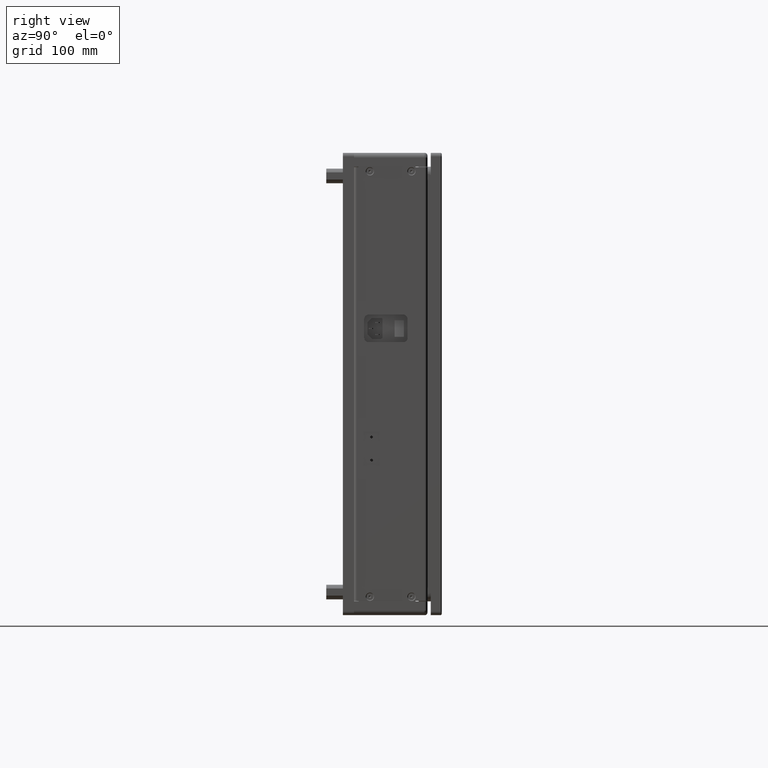
[diagram: clean part render]
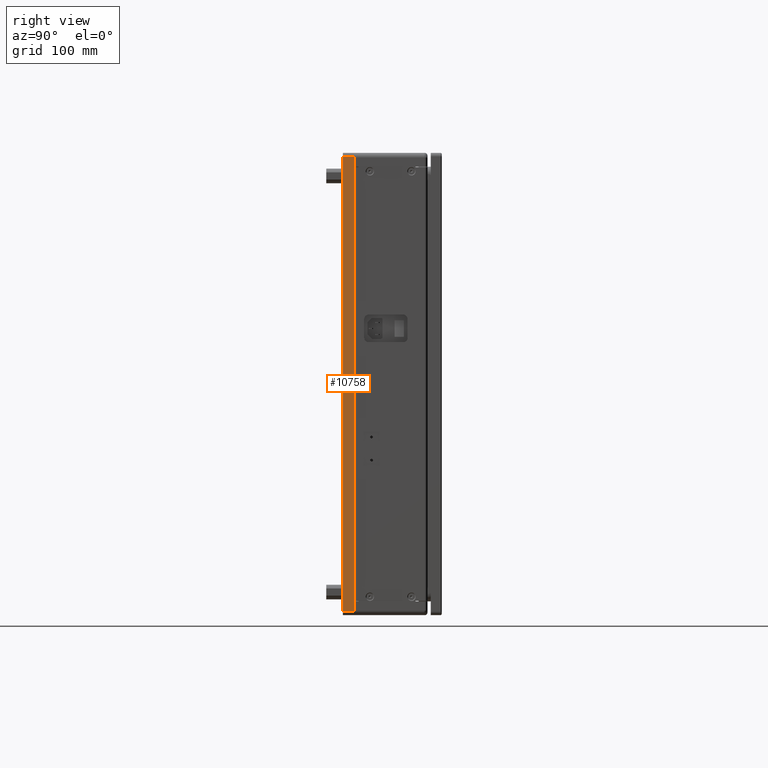
[diagram: same view with one face highlighted and labeled with its STEP entity id]
A machine part, right view. The second image highlights one B-rep face of the part: STEP entity #10758.
In plain terms, the highlighted planar face has unit normal (1, -0, 0).
Its self-contained STEP definition (entity closure, byte-faithful):
#1246 = CARTESIAN_POINT ( 'NONE',  ( 304.4512755979889107, 18.13718110050632859, 795.0000000000000000 ) ) ;
#1593 = DIRECTION ( 'NONE',  ( -0.000000000000000000, -1.000000000000000000, -0.000000000000000000 ) ) ;
#1907 = CARTESIAN_POINT ( 'NONE',  ( 304.4512755979889107, 6.137181100506329479, 299.0000000000000568 ) ) ;
#2777 = ORIENTED_EDGE ( 'NONE', *, *, #14515, .T. ) ;
#4587 = EDGE_CURVE ( 'NONE', #13349, #7317, #34899, .T. ) ;
#5811 = CARTESIAN_POINT ( 'NONE',  ( 304.4512755979889107, 6.137181100506329479, 295.0000000000000568 ) ) ;
#7317 = VERTEX_POINT ( 'NONE', #30132 ) ;
#7720 = FACE_OUTER_BOUND ( 'NONE', #15917, .T. ) ;
#7742 = LINE ( 'NONE', #22985, #26315 ) ;
#9839 = AXIS2_PLACEMENT_3D ( 'NONE', #19200, #25538, #13468 ) ;
#10137 = VECTOR ( 'NONE', #21271, 1000.000000000000000 ) ;
#10181 = ORIENTED_EDGE ( 'NONE', *, *, #30764, .T. ) ;
#10758 = ADVANCED_FACE ( 'NONE', ( #7720 ), #16633, .T. ) ;
#11554 = CARTESIAN_POINT ( 'NONE',  ( 304.4512755979889107, 6.137181100506329479, 299.0000000000000568 ) ) ;
#12683 = VECTOR ( 'NONE', #16309, 1000.000000000000000 ) ;
#13211 = VERTEX_POINT ( 'NONE', #11554 ) ;
#13349 = VERTEX_POINT ( 'NONE', #26801 ) ;
#13468 = DIRECTION ( 'NONE',  ( 0.000000000000000000, 0.000000000000000000, -1.000000000000000000 ) ) ;
#14515 = EDGE_CURVE ( 'NONE', #14710, #13211, #24442, .T. ) ;
#14710 = VERTEX_POINT ( 'NONE', #22234 ) ;
#15917 = EDGE_LOOP ( 'NONE', ( #25804, #10181, #2777, #38119 ) ) ;
#16309 = DIRECTION ( 'NONE',  ( -0.000000000000000000, -0.000000000000000000, 1.000000000000000000 ) ) ;
#16388 = EDGE_CURVE ( 'NONE', #13349, #13211, #23305, .T. ) ;
#16633 = PLANE ( 'NONE',  #9839 ) ;
#19200 = CARTESIAN_POINT ( 'NONE',  ( 304.4512755979889107, 6.137181100506329479, 795.0000000000000000 ) ) ;
#21271 = DIRECTION ( 'NONE',  ( -0.000000000000000000, 0.000000000000000000, -1.000000000000000000 ) ) ;
#22234 = CARTESIAN_POINT ( 'NONE',  ( 304.4512755979889107, 6.137181100506329479, 791.0000000000000000 ) ) ;
#22985 = CARTESIAN_POINT ( 'NONE',  ( 304.4512755979889107, 6.137181100506329479, 791.0000000000000000 ) ) ;
#23305 = LINE ( 'NONE', #1907, #32299 ) ;
#24442 = LINE ( 'NONE', #5811, #10137 ) ;
#25538 = DIRECTION ( 'NONE',  ( 1.000000000000000000, -0.000000000000000000, 0.000000000000000000 ) ) ;
#25804 = ORIENTED_EDGE ( 'NONE', *, *, #4587, .T. ) ;
#26076 = DIRECTION ( 'NONE',  ( -0.000000000000000000, -1.000000000000000000, -0.000000000000000000 ) ) ;
#26315 = VECTOR ( 'NONE', #1593, 1000.000000000000000 ) ;
#26801 = CARTESIAN_POINT ( 'NONE',  ( 304.4512755979889107, 18.13718110050632859, 299.0000000000000568 ) ) ;
#30132 = CARTESIAN_POINT ( 'NONE',  ( 304.4512755979889107, 18.13718110050632859, 791.0000000000000000 ) ) ;
#30764 = EDGE_CURVE ( 'NONE', #7317, #14710, #7742, .T. ) ;
#32299 = VECTOR ( 'NONE', #26076, 1000.000000000000000 ) ;
#34899 = LINE ( 'NONE', #1246, #12683 ) ;
#38119 = ORIENTED_EDGE ( 'NONE', *, *, #16388, .F. ) ;